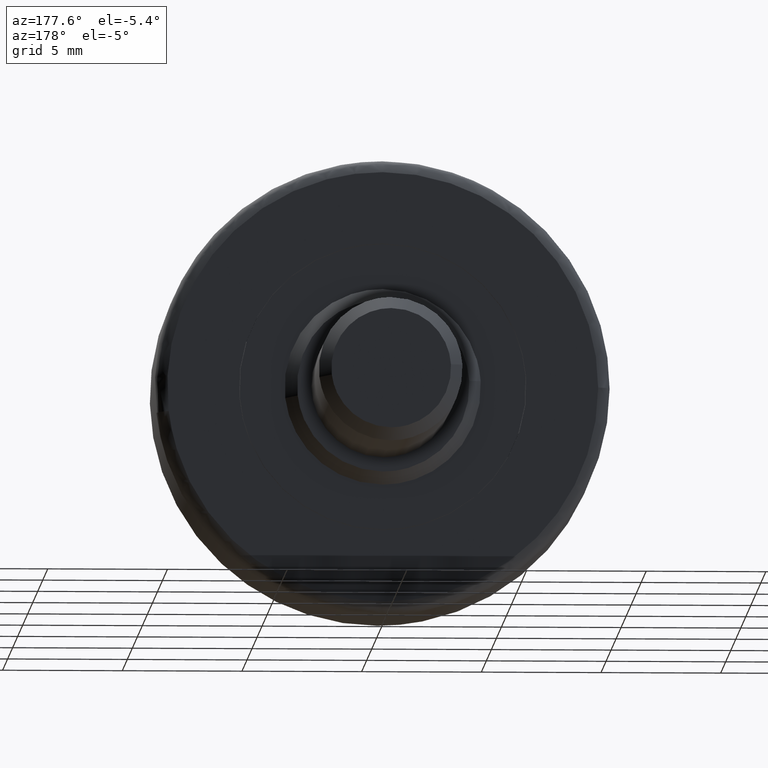
[diagram: clean part render]
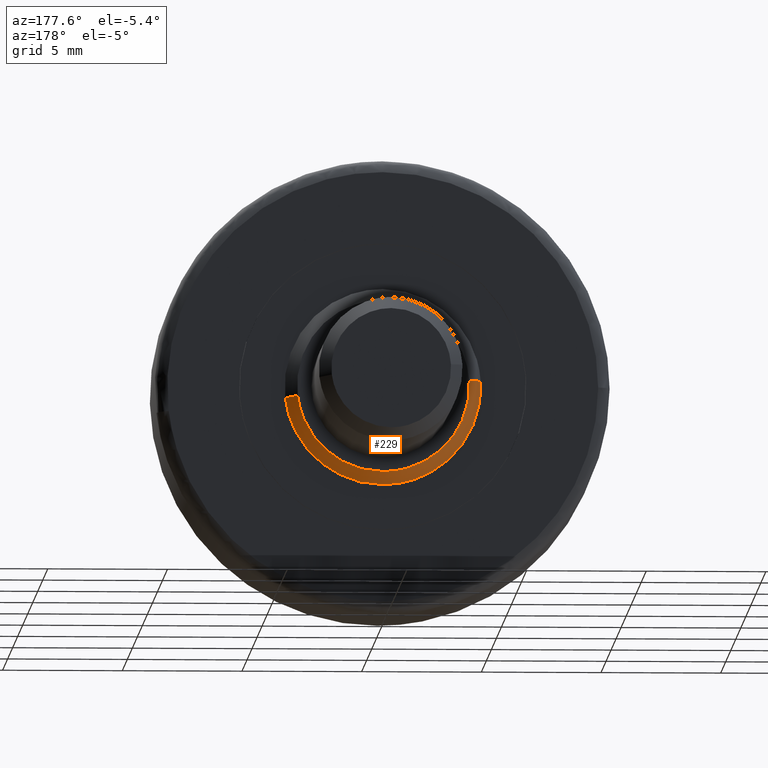
[diagram: same view with one face highlighted and labeled with its STEP entity id]
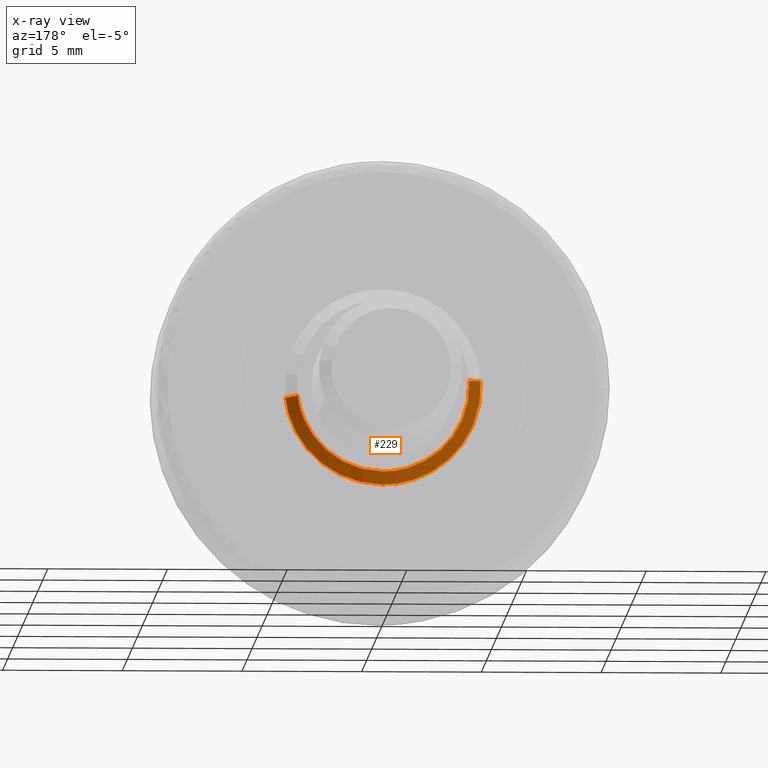
[diagram: x-ray of the same camera — body ghosted, the highlighted face saturated]
A machine part, auxiliary view. The second image highlights one B-rep face of the part: STEP entity #229.
The next image is the same camera in x-ray: the body ghosted, the highlighted face saturated — about 0% of this face is hidden behind the body in this view.
In plain terms, the highlighted face is a freeform B-spline surface patch.
Its self-contained STEP definition (entity closure, byte-faithful):
#66=CARTESIAN_POINT('',(4.071339058091090,5.999999999999179,-0.483940362099173));
#67=VERTEX_POINT('',#66);
#85=CARTESIAN_POINT('',(3.574834294909421,6.499999999996467,-0.424923244792396));
#86=VERTEX_POINT('',#85);
#87=CARTESIAN_POINT('',(3.574834294909421,6.499999999996467,-0.424923244792396));
#88=CARTESIAN_POINT('',(4.071339058091090,5.999999999999179,-0.483940362099173));
#89=QUASI_UNIFORM_CURVE('',1,(#87,#88),.UNSPECIFIED.,.F.,.U.);
#90=EDGE_CURVE('',#86,#67,#89,.T.);
#109=CARTESIAN_POINT('',(-3.593285274322899,6.499999999992211,0.219774742384762));
#110=VERTEX_POINT('',#109);
#124=CARTESIAN_POINT('',(-4.092352673532298,5.999999999995088,0.250299012130136));
#125=VERTEX_POINT('',#124);
#126=CARTESIAN_POINT('',(-3.593285274322899,6.499999999992211,0.219774742384762));
#127=CARTESIAN_POINT('',(-4.092352673532298,5.999999999995088,0.250299012130136));
#128=QUASI_UNIFORM_CURVE('',1,(#126,#127),.UNSPECIFIED.,.F.,.U.);
#129=EDGE_CURVE('',#110,#125,#128,.T.);
#147=CARTESIAN_POINT('',(-3.580808589338446,6.512500000000001,0.219011635581299));
#148=CARTESIAN_POINT('',(-3.799820224919746,6.512500000000001,-3.361796953757147));
#149=CARTESIAN_POINT('',(-0.219011635581299,6.512500000000001,-3.580808589338446));
#150=CARTESIAN_POINT('',(3.162537273386710,6.512500000000001,-3.787632980777942));
#151=CARTESIAN_POINT('',(3.562421675829653,6.512500000000001,-0.423447816831121));
#152=CARTESIAN_POINT('',(-4.105141275634433,5.987187499999999,0.251081196505704));
#153=CARTESIAN_POINT('',(-4.356222472140138,5.987187500000000,-3.854060079128729));
#154=CARTESIAN_POINT('',(-0.251081196505704,5.987187499999999,-4.105141275634433));
#155=CARTESIAN_POINT('',(3.625623088418335,5.987187499999999,-4.342250667248997));
#156=CARTESIAN_POINT('',(4.084061992647566,5.987187500000000,-0.485452675724249));
#164=(BOUNDED_SURFACE()B_SPLINE_SURFACE(2,1,((#147,#152),(#148,#153),(#149,#154),(#150,#155),(#151,#156)),.UNSPECIFIED.,.F.,.F.,.U.)B_SPLINE_SURFACE_WITH_KNOTS((3,2,3),(2,2),(0.0,6.814330867990379,13.356088501261141),(0.0,1.0),.UNSPECIFIED.)GEOMETRIC_REPRESENTATION_ITEM()RATIONAL_B_SPLINE_SURFACE(((1.0,1.0),(0.707106781186548,0.707106781186548),(1.0,1.0),(0.718822509939086,0.718822509939086),(0.977505800795127,0.977505800795127)))REPRESENTATION_ITEM('')SURFACE());
#165=CARTESIAN_POINT('',(0.0,6.0,-4.100000000000001));
#166=VERTEX_POINT('',#165);
#167=CARTESIAN_POINT('',(0.0,6.0,-4.100000000000001));
#168=CARTESIAN_POINT('',(3.641515556389142,6.000000000000001,-4.100000000000001));
#169=CARTESIAN_POINT('',(4.071339058091090,5.999999999999179,-0.483940362099173));
#177=(BOUNDED_CURVE()B_SPLINE_CURVE(2,(#167,#168,#169),.UNSPECIFIED.,.F.,.U.)B_SPLINE_CURVE_WITH_KNOTS((3,3),(0.0,0.229562473515116),.UNSPECIFIED.)CURVE()GEOMETRIC_REPRESENTATION_ITEM()RATIONAL_B_SPLINE_CURVE((1.0,0.731050832853519,0.956026754186850))REPRESENTATION_ITEM(''));
#178=EDGE_CURVE('',#166,#67,#177,.T.);
#179=ORIENTED_EDGE('',*,*,#178,.F.);
#180=CARTESIAN_POINT('',(-4.092352673532298,5.999999999995088,0.250299012130136));
#181=CARTESIAN_POINT('',(-4.100000000000001,6.0,0.125266329561241));
#182=CARTESIAN_POINT('',(-4.100000000000001,6.0,-1.552808E-016));
#183=CARTESIAN_POINT('',(-4.100000000000001,6.0,-4.100000000000001));
#184=CARTESIAN_POINT('',(0.0,6.0,-4.100000000000001));
#192=(BOUNDED_CURVE()B_SPLINE_CURVE(2,(#180,#181,#182,#183,#184),.UNSPECIFIED.,.F.,.U.)B_SPLINE_CURVE_WITH_KNOTS((3,2,3),(0.739332962238855,0.750000000000000,1.0),.UNSPECIFIED.)CURVE()GEOMETRIC_REPRESENTATION_ITEM()RATIONAL_B_SPLINE_CURVE((0.976072041666529,0.987502787899734,1.0,0.707106781186547,1.0))REPRESENTATION_ITEM(''));
#193=EDGE_CURVE('',#125,#166,#192,.T.);
#194=ORIENTED_EDGE('',*,*,#193,.F.);
#195=ORIENTED_EDGE('',*,*,#129,.F.);
#196=CARTESIAN_POINT('',(0.0,6.500000000000000,-3.600000000000000));
#197=VERTEX_POINT('',#196);
#198=CARTESIAN_POINT('',(-3.593285274322899,6.499999999992211,0.219774742384762));
#199=CARTESIAN_POINT('',(-3.600000000000001,6.500000000000000,0.109989947933887));
#200=CARTESIAN_POINT('',(-3.600000000000000,6.500000000000000,-1.552808E-016));
#201=CARTESIAN_POINT('',(-3.600000000000000,6.500000000000000,-3.600000000000000));
#202=CARTESIAN_POINT('',(0.0,6.500000000000000,-3.600000000000000));
#210=(BOUNDED_CURVE()B_SPLINE_CURVE(2,(#198,#199,#200,#201,#202),.UNSPECIFIED.,.F.,.U.)B_SPLINE_CURVE_WITH_KNOTS((3,2,3),(0.739332962236321,0.750000000000000,1.0),.UNSPECIFIED.)CURVE()GEOMETRIC_REPRESENTATION_ITEM()RATIONAL_B_SPLINE_CURVE((0.976072041661099,0.987502787896766,1.0,0.707106781186547,1.0))REPRESENTATION_ITEM(''));
#211=EDGE_CURVE('',#110,#197,#210,.T.);
#212=ORIENTED_EDGE('',*,*,#211,.T.);
#213=CARTESIAN_POINT('',(0.0,6.500000000000000,-3.600000000000000));
#214=CARTESIAN_POINT('',(3.197428293375118,6.500000000000002,-3.599999999999999));
#215=CARTESIAN_POINT('',(3.574834294909421,6.499999999996467,-0.424923244792396));
#223=(BOUNDED_CURVE()B_SPLINE_CURVE(2,(#213,#214,#215),.UNSPECIFIED.,.F.,.U.)B_SPLINE_CURVE_WITH_KNOTS((3,3),(0.0,0.229562473513030),.UNSPECIFIED.)CURVE()GEOMETRIC_REPRESENTATION_ITEM()RATIONAL_B_SPLINE_CURVE((1.0,0.731050832855963,0.956026754182762))REPRESENTATION_ITEM(''));
#224=EDGE_CURVE('',#197,#86,#223,.T.);
#225=ORIENTED_EDGE('',*,*,#224,.T.);
#226=ORIENTED_EDGE('',*,*,#90,.T.);
#227=EDGE_LOOP('',(#179,#194,#195,#212,#225,#226));
#228=FACE_OUTER_BOUND('',#227,.T.);
#229=ADVANCED_FACE('',(#228),#164,.T.);